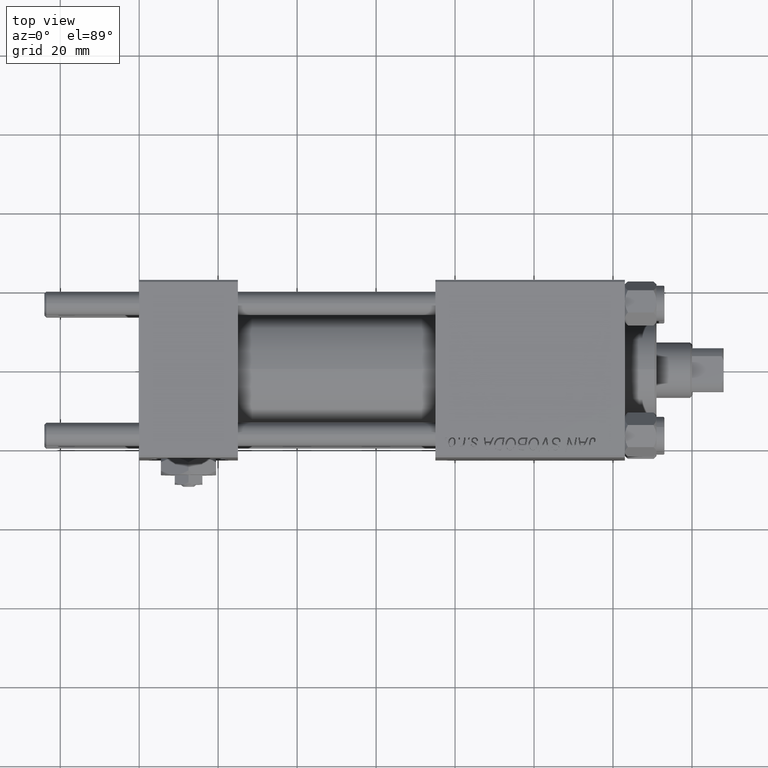
[diagram: clean part render]
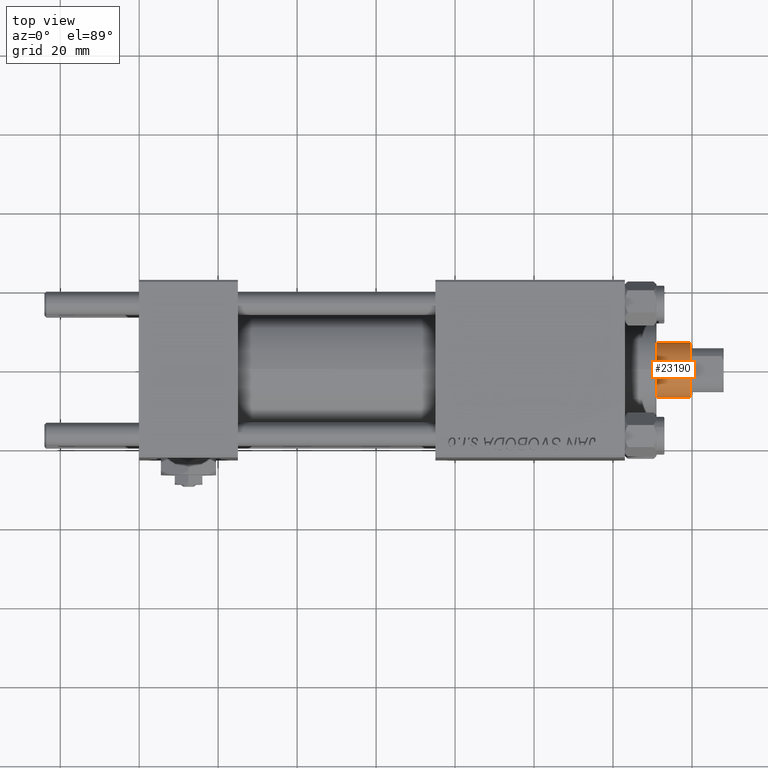
[diagram: same view with one face highlighted and labeled with its STEP entity id]
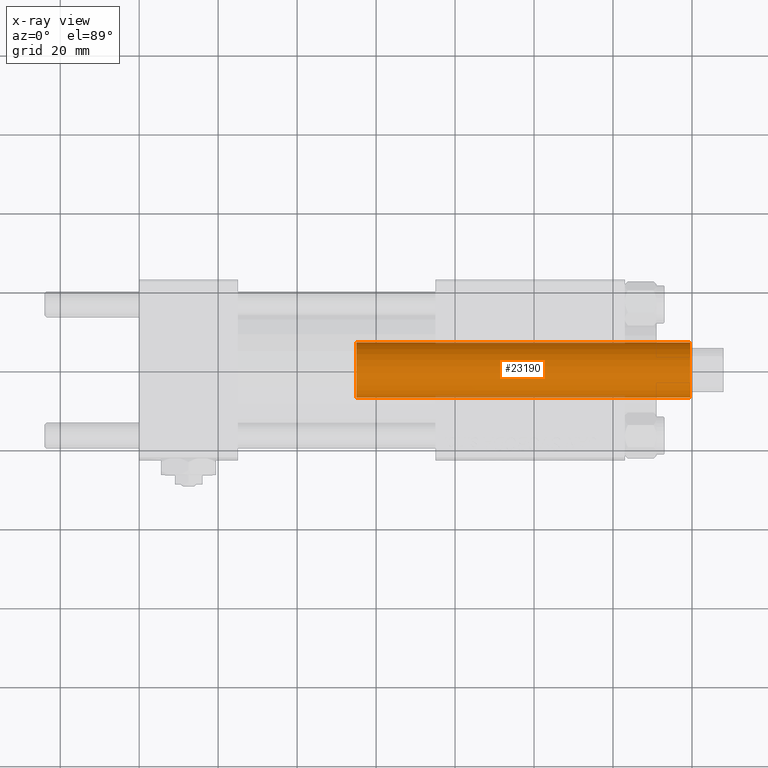
[diagram: x-ray of the same camera — body ghosted, the highlighted face saturated]
A machine part, top view. The second image highlights one B-rep face of the part: STEP entity #23190.
The next image is the same camera in x-ray: the body ghosted, the highlighted face saturated — about 4% of this face is hidden behind the body in this view.
In plain terms, the highlighted cylindrical surface (edge-blend (fillet) strip) has radius 7 mm, axis along (-1, 0, 0).
Its self-contained STEP definition (entity closure, byte-faithful):
#422 = VECTOR ( 'NONE', #10166, 1000.000000000000000 ) ;
#1510 = CARTESIAN_POINT ( 'NONE',  ( 7.000000000000000000, 8.572527594031473190E-16, 30.00000000000000000 ) ) ;
#2346 = DIRECTION ( 'NONE',  ( 0.000000000000000000, 0.000000000000000000, -1.000000000000000000 ) ) ;
#2931 = EDGE_CURVE ( 'NONE', #44085, #49286, #7437, .T. ) ;
#7437 = CIRCLE ( 'NONE', #18289, 7.000000000000000000 ) ;
#7776 = CARTESIAN_POINT ( 'NONE',  ( 7.000000000000000000, 8.572527594031473190E-16, 114.4999999999999858 ) ) ;
#9680 = DIRECTION ( 'NONE',  ( 1.000000000000000000, 0.000000000000000000, 0.000000000000000000 ) ) ;
#10021 = DIRECTION ( 'NONE',  ( -0.000000000000000000, -0.000000000000000000, -1.000000000000000000 ) ) ;
#10166 = DIRECTION ( 'NONE',  ( -0.000000000000000000, -0.000000000000000000, -1.000000000000000000 ) ) ;
#13184 = CARTESIAN_POINT ( 'NONE',  ( -7.000000000000000000, 0.000000000000000000, 115.0000000000000000 ) ) ;
#13469 = EDGE_CURVE ( 'NONE', #15301, #22627, #38557, .T. ) ;
#13945 = VECTOR ( 'NONE', #10021, 1000.000000000000000 ) ;
#15301 = VERTEX_POINT ( 'NONE', #7776 ) ;
#16019 = AXIS2_PLACEMENT_3D ( 'NONE', #42069, #2346, #9680 ) ;
#17237 = CARTESIAN_POINT ( 'NONE',  ( 7.000000000000000000, 8.572527594031473190E-16, 115.0000000000000000 ) ) ;
#18289 = AXIS2_PLACEMENT_3D ( 'NONE', #42768, #31789, #43805 ) ;
#19886 = ORIENTED_EDGE ( 'NONE', *, *, #2931, .T. ) ;
#22627 = VERTEX_POINT ( 'NONE', #45824 ) ;
#23190 = ADVANCED_FACE ( 'NONE', ( #43932 ), #39499, .T. ) ;
#28871 = EDGE_CURVE ( 'NONE', #22627, #44085, #33566, .T. ) ;
#31789 = DIRECTION ( 'NONE',  ( 0.000000000000000000, 0.000000000000000000, 1.000000000000000000 ) ) ;
#32489 = EDGE_LOOP ( 'NONE', ( #49228, #39600, #44807, #19886 ) ) ;
#33566 = LINE ( 'NONE', #13184, #13945 ) ;
#35057 = DIRECTION ( 'NONE',  ( -1.000000000000000000, 0.000000000000000000, 0.000000000000000000 ) ) ;
#37542 = EDGE_CURVE ( 'NONE', #15301, #49286, #48855, .T. ) ;
#38557 = CIRCLE ( 'NONE', #16019, 7.000000000000000000 ) ;
#39246 = CARTESIAN_POINT ( 'NONE',  ( 0.000000000000000000, 0.000000000000000000, 115.0000000000000000 ) ) ;
#39269 = CARTESIAN_POINT ( 'NONE',  ( -7.000000000000000000, 0.000000000000000000, 30.00000000000000000 ) ) ;
#39499 = CYLINDRICAL_SURFACE ( 'NONE', #39632, 7.000000000000000000 ) ;
#39600 = ORIENTED_EDGE ( 'NONE', *, *, #13469, .T. ) ;
#39632 = AXIS2_PLACEMENT_3D ( 'NONE', #39246, #39773, #35057 ) ;
#39773 = DIRECTION ( 'NONE',  ( -0.000000000000000000, -0.000000000000000000, -1.000000000000000000 ) ) ;
#42069 = CARTESIAN_POINT ( 'NONE',  ( 0.000000000000000000, 0.000000000000000000, 114.4999999999999858 ) ) ;
#42768 = CARTESIAN_POINT ( 'NONE',  ( 0.000000000000000000, 0.000000000000000000, 30.00000000000000000 ) ) ;
#43805 = DIRECTION ( 'NONE',  ( 1.000000000000000000, 0.000000000000000000, 0.000000000000000000 ) ) ;
#43932 = FACE_OUTER_BOUND ( 'NONE', #32489, .T. ) ;
#44085 = VERTEX_POINT ( 'NONE', #39269 ) ;
#44807 = ORIENTED_EDGE ( 'NONE', *, *, #28871, .T. ) ;
#45824 = CARTESIAN_POINT ( 'NONE',  ( -7.000000000000000000, 0.000000000000000000, 114.4999999999999858 ) ) ;
#48855 = LINE ( 'NONE', #17237, #422 ) ;
#49228 = ORIENTED_EDGE ( 'NONE', *, *, #37542, .F. ) ;
#49286 = VERTEX_POINT ( 'NONE', #1510 ) ;